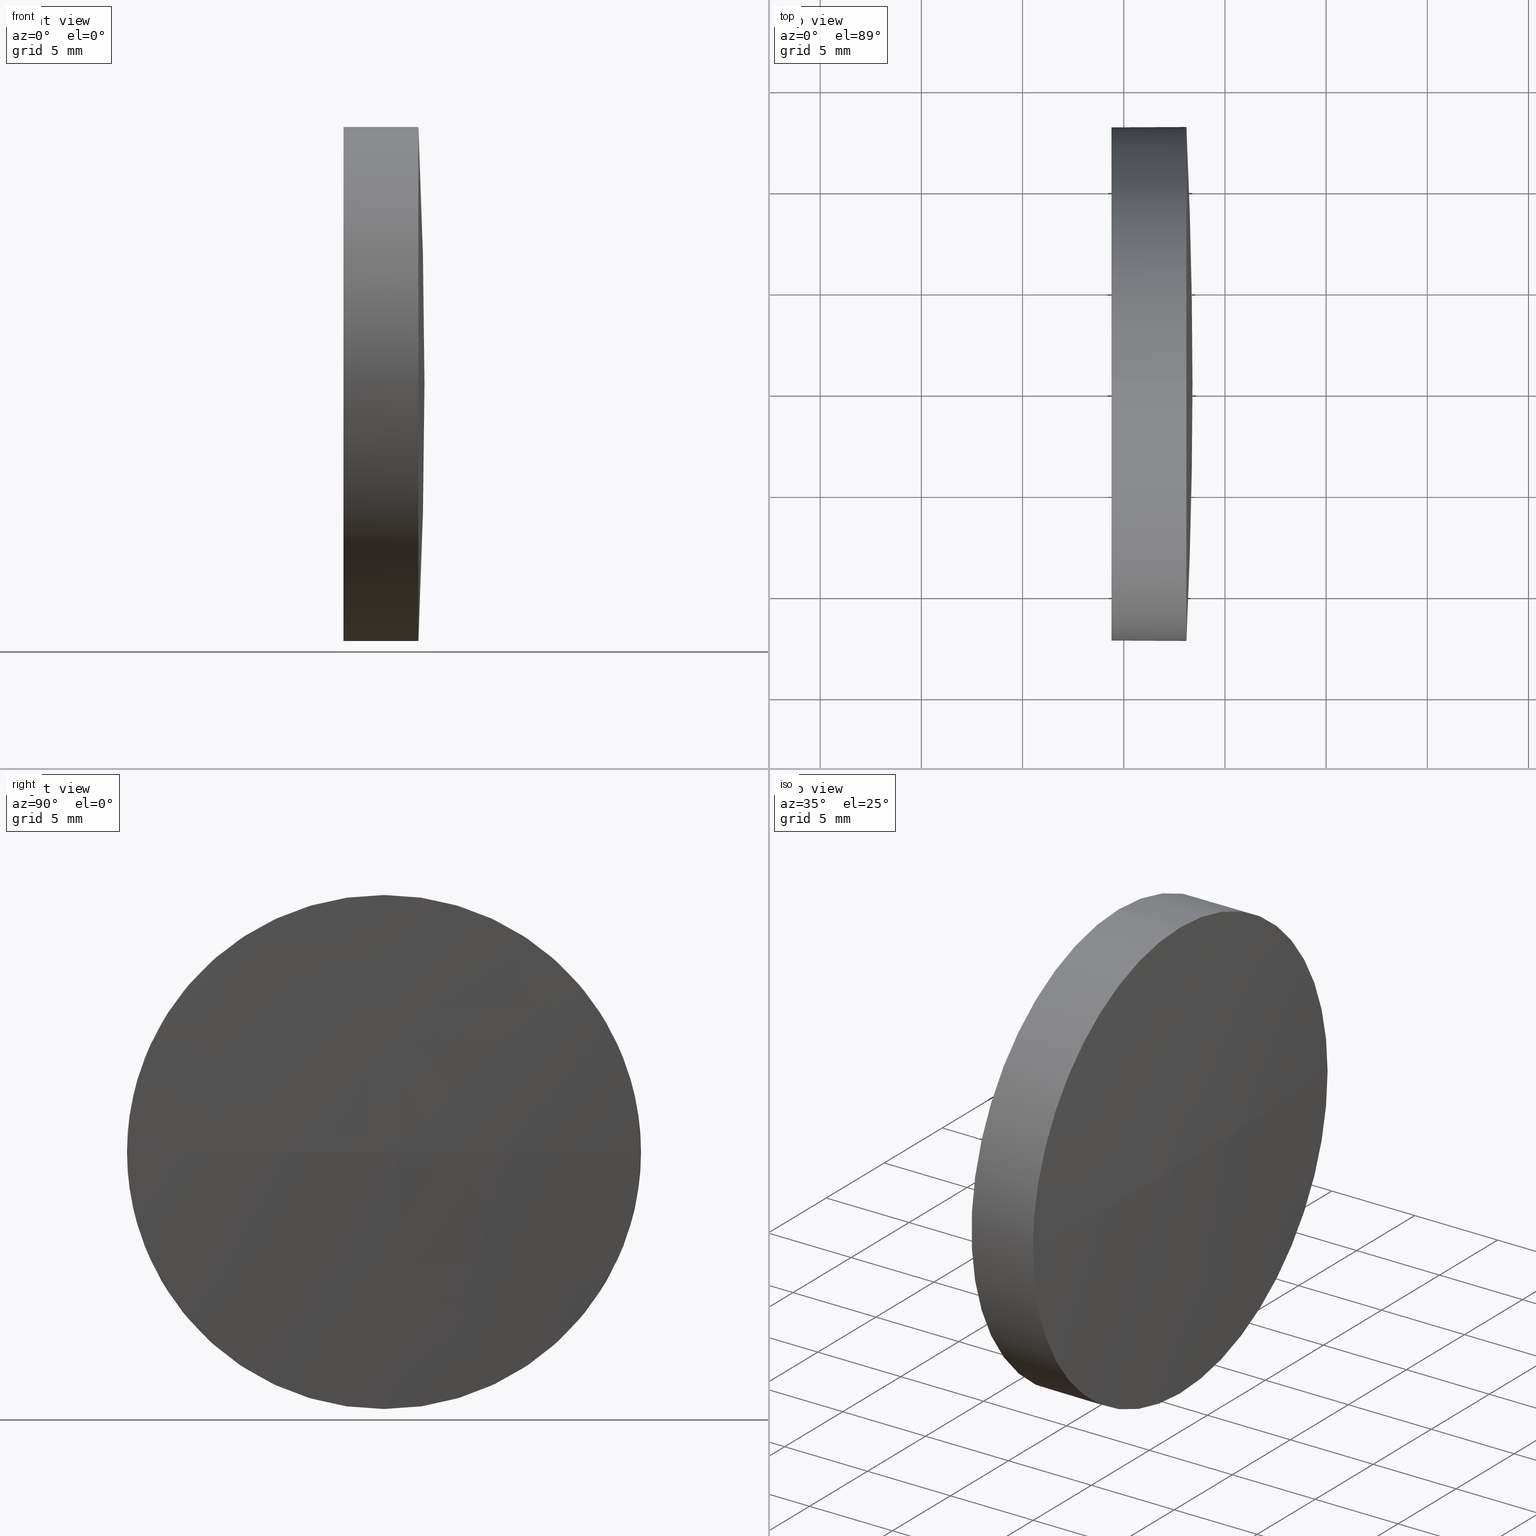
[diagram: canonical four-view strip — front | top / right | iso, engineering-drawing reading convention]
A machine part, canonical four-view strip (front | top / right | iso — engineering-drawing reading convention). The complete STEP part file that produces these views, byte-faithful:
ISO-10303-21;
HEADER;
FILE_DESCRIPTION (( 'STEP AP214' ),
    '1' );
FILE_NAME ('100494.STEP',
    '2019-06-12T05:53:42',
    ( '' ),
    ( '' ),
    'SwSTEP 2.0',
    'SolidWorks 2016',
    '' );
FILE_SCHEMA (( 'AUTOMOTIVE_DESIGN' ));
ENDSEC;

DATA;
#1 = DIRECTION ( 'NONE',  ( 0.0000000000000000000, 0.0000000000000000000, 1.000000000000000000 ) ) ;
#2 = AXIS2_PLACEMENT_3D ( 'NONE', #133, #161, #108 ) ;
#3 = CARTESIAN_POINT ( 'NONE',  ( 548.0956546235013300, 475.3741786464798900, 12.70000000000004500 ) ) ;
#4 = PRODUCT_DEFINITION_FORMATION_WITH_SPECIFIED_SOURCE ( '�κ�', '', #143, .NOT_KNOWN. ) ;
#5 = PRESENTATION_STYLE_ASSIGNMENT (( #185 ) ) ;
#6 = ORIENTED_EDGE ( 'NONE', *, *, #35, .T. ) ;
#7 = EDGE_CURVE ( 'NONE', #149, #169, #146, .T. ) ;
#8 = CARTESIAN_POINT ( 'NONE',  ( 548.0956546235013300, 475.3741786464798900, 0.0000000000000000000 ) ) ;
#9 = PRESENTATION_LAYER_ASSIGNMENT (  '', '', ( #47 ) ) ;
#10 = CARTESIAN_POINT ( 'NONE',  ( 548.0956546235013300, 475.3741786464798900, 0.0000000000000000000 ) ) ;
#11 = ORIENTED_EDGE ( 'NONE', *, *, #180, .T. ) ;
#12 = DIRECTION ( 'NONE',  ( 0.0000000000000000000, 0.0000000000000000000, 1.000000000000000000 ) ) ;
#13 = DIRECTION ( 'NONE',  ( 0.0000000000000000000, 0.0000000000000000000, 1.000000000000000000 ) ) ;
#14 = ORIENTED_EDGE ( 'NONE', *, *, #90, .F. ) ;
#15 =( GEOMETRIC_REPRESENTATION_CONTEXT ( 3 ) GLOBAL_UNCERTAINTY_ASSIGNED_CONTEXT ( ( #59 ) ) GLOBAL_UNIT_ASSIGNED_CONTEXT ( ( #150, #122, #135 ) ) REPRESENTATION_CONTEXT ( 'NONE', 'WORKASPACE' ) );
#16 = CARTESIAN_POINT ( 'NONE',  ( 548.0956546235013300, 475.3741786464798900, 0.0000000000000000000 ) ) ;
#17 = FACE_OUTER_BOUND ( 'NONE', #114, .T. ) ;
#18 = VERTEX_POINT ( 'NONE', #49 ) ;
#19 = FILL_AREA_STYLE_COLOUR ( '', #101 ) ;
#20 = DIRECTION ( 'NONE',  ( 0.0000000000000000000, 0.0000000000000000000, 1.000000000000000000 ) ) ;
#21 = ADVANCED_BREP_SHAPE_REPRESENTATION ( '100494', ( #155, #66 ), #87 ) ;
#22 = DIRECTION ( 'NONE',  ( 0.0000000000000000000, 1.000000000000000000, 0.0000000000000000000 ) ) ;
#23 = CYLINDRICAL_SURFACE ( 'NONE', #2, 12.70000000000004500 ) ;
#24 = APPLICATION_CONTEXT ( 'automotive_design' ) ;
#25 = DIRECTION ( 'NONE',  ( 1.000000000000000000, 0.0000000000000000000, 0.0000000000000000000 ) ) ;
#26 = PRODUCT_CONTEXT ( 'NONE', #46, 'mechanical' ) ;
#27 = SURFACE_STYLE_FILL_AREA ( #30 ) ;
#28 = EDGE_CURVE ( 'NONE', #45, #149, #103, .T. ) ;
#29 = ORIENTED_EDGE ( 'NONE', *, *, #35, .F. ) ;
#30 = FILL_AREA_STYLE ('',( #183 ) ) ;
#31 =( GEOMETRIC_REPRESENTATION_CONTEXT ( 3 ) GLOBAL_UNCERTAINTY_ASSIGNED_CONTEXT ( ( #39 ) ) GLOBAL_UNIT_ASSIGNED_CONTEXT ( ( #112, #139, #141 ) ) REPRESENTATION_CONTEXT ( 'NONE', 'WORKASPACE' ) );
#32 = CARTESIAN_POINT ( 'NONE',  ( 544.3956546235012900, 475.3741786464798900, 0.0000000000000000000 ) ) ;
#33 = CIRCLE ( 'NONE', #43, 12.70000000000004500 ) ;
#34 = VERTEX_POINT ( 'NONE', #3 ) ;
#35 = EDGE_CURVE ( 'NONE', #18, #115, #33, .T. ) ;
#36 = ORIENTED_EDGE ( 'NONE', *, *, #85, .F. ) ;
#37 = DIRECTION ( 'NONE',  ( 0.0000000000000000000, 0.0000000000000000000, 1.000000000000000000 ) ) ;
#38 = CARTESIAN_POINT ( 'NONE',  ( 279.4289879568316900, 475.3741786464798900, 0.0000000000000000000 ) ) ;
#39 = UNCERTAINTY_MEASURE_WITH_UNIT (LENGTH_MEASURE( 1.000000000000000100E-005 ), #112, 'distance_accuracy_value', 'NONE');
#40 = CARTESIAN_POINT ( 'NONE',  ( 538.7657585723441100, 475.3741786464798900, 12.70000000000004500 ) ) ;
#41 = DIRECTION ( 'NONE',  ( -1.000000000000000000, -0.0000000000000000000, -0.0000000000000000000 ) ) ;
#42 = ORIENTED_EDGE ( 'NONE', *, *, #7, .F. ) ;
#43 = AXIS2_PLACEMENT_3D ( 'NONE', #32, #128, #157 ) ;
#44 =( LENGTH_UNIT ( ) NAMED_UNIT ( * ) SI_UNIT ( .MILLI., .METRE. ) );
#45 = VERTEX_POINT ( 'NONE', #76 ) ;
#46 = APPLICATION_CONTEXT ( 'automotive_design' ) ;
#47 = STYLED_ITEM ( 'NONE', ( #5 ), #21 ) ;
#48 = COLOUR_RGB ( '',1.000000000000000000, 1.000000000000000000, 1.000000000000000000 ) ;
#49 = CARTESIAN_POINT ( 'NONE',  ( 544.3956546235012900, 475.3741786464798900, -12.70000000000004500 ) ) ;
#50 = EDGE_CURVE ( 'NONE', #34, #45, #172, .T. ) ;
#51 = SPHERICAL_SURFACE ( 'NONE', #81, 268.9666666666696000 ) ;
#52 = ORIENTED_EDGE ( 'NONE', *, *, #171, .T. ) ;
#53 = PRESENTATION_LAYER_ASSIGNMENT (  '', '', ( #99 ) ) ;
#54 = DIRECTION ( 'NONE',  ( -0.0000000000000000000, 0.0000000000000000000, 1.000000000000000000 ) ) ;
#55 = CARTESIAN_POINT ( 'NONE',  ( 548.3956546235012900, 475.3741786464798900, 0.0000000000000000000 ) ) ;
#56 = CARTESIAN_POINT ( 'NONE',  ( 548.0956546235013300, 462.6741786464803000, -1.555301434917094700E-015 ) ) ;
#57 = SURFACE_STYLE_FILL_AREA ( #137 ) ;
#58 = AXIS2_PLACEMENT_3D ( 'NONE', #10, #41, #123 ) ;
#59 = UNCERTAINTY_MEASURE_WITH_UNIT (LENGTH_MEASURE( 1.000000000000000100E-005 ), #150, 'distance_accuracy_value', 'NONE');
#60 = FACE_OUTER_BOUND ( 'NONE', #89, .T. ) ;
#61 = PRODUCT_RELATED_PRODUCT_CATEGORY ( 'part', '', ( #143 ) ) ;
#62 = FACE_OUTER_BOUND ( 'NONE', #131, .T. ) ;
#63 = PRODUCT_DEFINITION_CONTEXT ( 'detailed design', #24, 'design' ) ;
#64 = AXIS2_PLACEMENT_3D ( 'NONE', #16, #170, #1 ) ;
#65 = CARTESIAN_POINT ( 'NONE',  ( 544.3956546235012900, 475.3741786464798900, 0.0000000000000000000 ) ) ;
#66 = AXIS2_PLACEMENT_3D ( 'NONE', #96, #13, #25 ) ;
#67 = CARTESIAN_POINT ( 'NONE',  ( 544.3956546235012900, 475.3741786464798900, 0.0000000000000000000 ) ) ;
#68 = CARTESIAN_POINT ( 'NONE',  ( 538.7657585723441100, 475.3741786464798900, 0.0000000000000000000 ) ) ;
#69 = ORIENTED_EDGE ( 'NONE', *, *, #120, .T. ) ;
#70 = DIRECTION ( 'NONE',  ( 1.000000000000000000, 0.0000000000000000000, 0.0000000000000000000 ) ) ;
#71 = AXIS2_PLACEMENT_3D ( 'NONE', #38, #54, #70 ) ;
#72 =( NAMED_UNIT ( * ) SI_UNIT ( $, .STERADIAN. ) SOLID_ANGLE_UNIT ( ) );
#73 = EDGE_LOOP ( 'NONE', ( #36, #124, #182, #159 ) ) ;
#74 = CIRCLE ( 'NONE', #92, 12.70000000000004500 ) ;
#75 = DIRECTION ( 'NONE',  ( -1.000000000000000000, -0.0000000000000000000, -0.0000000000000000000 ) ) ;
#76 = CARTESIAN_POINT ( 'NONE',  ( 548.0956546235013300, 488.0741786464794800, 0.0000000000000000000 ) ) ;
#77 = ORIENTED_EDGE ( 'NONE', *, *, #180, .F. ) ;
#78 = AXIS2_PLACEMENT_3D ( 'NONE', #65, #153, #97 ) ;
#79 = PRODUCT_DEFINITION ( 'δ֪', '', #4, #63 ) ;
#80 = ORIENTED_EDGE ( 'NONE', *, *, #28, .T. ) ;
#81 = AXIS2_PLACEMENT_3D ( 'NONE', #163, #110, #22 ) ;
#82 = ORIENTED_EDGE ( 'NONE', *, *, #7, .T. ) ;
#83 = DIRECTION ( 'NONE',  ( 0.0000000000000000000, 1.000000000000000000, 1.224646799147353200E-016 ) ) ;
#84 = DIRECTION ( 'NONE',  ( -0.0000000000000000000, 0.0000000000000000000, -1.000000000000000000 ) ) ;
#85 = EDGE_CURVE ( 'NONE', #167, #169, #104, .T. ) ;
#86 =( NAMED_UNIT ( * ) PLANE_ANGLE_UNIT ( ) SI_UNIT ( $, .RADIAN. ) );
#87 =( GEOMETRIC_REPRESENTATION_CONTEXT ( 3 ) GLOBAL_UNCERTAINTY_ASSIGNED_CONTEXT ( ( #165 ) ) GLOBAL_UNIT_ASSIGNED_CONTEXT ( ( #44, #86, #72 ) ) REPRESENTATION_CONTEXT ( 'NONE', 'WORKASPACE' ) );
#88 = VECTOR ( 'NONE', #136, 1000.000000000000000 ) ;
#89 = EDGE_LOOP ( 'NONE', ( #14, #156, #42, #142 ) ) ;
#90 = EDGE_CURVE ( 'NONE', #167, #45, #147, .T. ) ;
#91 = SHAPE_DEFINITION_REPRESENTATION ( #145, #21 ) ;
#92 = AXIS2_PLACEMENT_3D ( 'NONE', #67, #179, #37 ) ;
#93 = DIRECTION ( 'NONE',  ( -1.000000000000000000, -0.0000000000000000000, -0.0000000000000000000 ) ) ;
#94 = ORIENTED_EDGE ( 'NONE', *, *, #106, .F. ) ;
#95 = DIRECTION ( 'NONE',  ( -1.000000000000000000, -0.0000000000000000000, -0.0000000000000000000 ) ) ;
#96 = CARTESIAN_POINT ( 'NONE',  ( 0.0000000000000000000, 0.0000000000000000000, 0.0000000000000000000 ) ) ;
#97 = DIRECTION ( 'NONE',  ( 0.0000000000000000000, 0.0000000000000000000, -1.000000000000000000 ) ) ;
#98 = EDGE_LOOP ( 'NONE', ( #107, #6 ) ) ;
#99 = STYLED_ITEM ( 'NONE', ( #162 ), #155 ) ;
#100 = MECHANICAL_DESIGN_GEOMETRIC_PRESENTATION_REPRESENTATION (  '', ( #47 ), #31 ) ;
#101 = COLOUR_RGB ( '',1.000000000000000000, 1.000000000000000000, 1.000000000000000000 ) ;
#102 = ORIENTED_EDGE ( 'NONE', *, *, #50, .T. ) ;
#103 = CIRCLE ( 'NONE', #144, 12.70000000000004500 ) ;
#104 = CIRCLE ( 'NONE', #129, 268.9666666666696000 ) ;
#105 = ADVANCED_FACE ( 'NONE', ( #176 ), #121, .F. ) ;
#106 = EDGE_CURVE ( 'NONE', #115, #18, #74, .T. ) ;
#107 = ORIENTED_EDGE ( 'NONE', *, *, #106, .T. ) ;
#108 = DIRECTION ( 'NONE',  ( 0.0000000000000000000, 0.0000000000000000000, 1.000000000000000000 ) ) ;
#109 = DIRECTION ( 'NONE',  ( 0.0000000000000000000, 1.224646799147353200E-016, -1.000000000000000000 ) ) ;
#110 = DIRECTION ( 'NONE',  ( -0.0000000000000000000, 0.0000000000000000000, -1.000000000000000000 ) ) ;
#111 = CARTESIAN_POINT ( 'NONE',  ( 538.7657585723441100, 475.3741786464798900, -12.70000000000004500 ) ) ;
#112 =( LENGTH_UNIT ( ) NAMED_UNIT ( * ) SI_UNIT ( .MILLI., .METRE. ) );
#113 = APPLICATION_PROTOCOL_DEFINITION ( 'draft international standard', 'automotive_design', 1998, #46 ) ;
#114 = EDGE_LOOP ( 'NONE', ( #77, #82, #69, #52, #29 ) ) ;
#115 = VERTEX_POINT ( 'NONE', #138 ) ;
#116 = CARTESIAN_POINT ( 'NONE',  ( 548.0956546235013300, 475.3741786464798900, 0.0000000000000000000 ) ) ;
#117 = AXIS2_PLACEMENT_3D ( 'NONE', #68, #95, #20 ) ;
#118 = FACE_OUTER_BOUND ( 'NONE', #73, .T. ) ;
#119 = ADVANCED_FACE ( 'NONE', ( #62 ), #23, .T. ) ;
#120 = EDGE_CURVE ( 'NONE', #169, #34, #134, .T. ) ;
#121 = PLANE ( 'NONE',  #78 ) ;
#122 =( NAMED_UNIT ( * ) PLANE_ANGLE_UNIT ( ) SI_UNIT ( $, .RADIAN. ) );
#123 = DIRECTION ( 'NONE',  ( 0.0000000000000000000, 0.0000000000000000000, 1.000000000000000000 ) ) ;
#124 = ORIENTED_EDGE ( 'NONE', *, *, #90, .T. ) ;
#125 = CARTESIAN_POINT ( 'NONE',  ( 548.0956546235013300, 475.3741786464798900, -12.70000000000004500 ) ) ;
#126 = APPLICATION_PROTOCOL_DEFINITION ( 'draft international standard', 'automotive_design', 1998, #24 ) ;
#127 = CYLINDRICAL_SURFACE ( 'NONE', #117, 12.70000000000004500 ) ;
#128 = DIRECTION ( 'NONE',  ( -1.000000000000000000, -0.0000000000000000000, -0.0000000000000000000 ) ) ;
#129 = AXIS2_PLACEMENT_3D ( 'NONE', #177, #109, #83 ) ;
#130 = SPHERICAL_SURFACE ( 'NONE', #160, 268.9666666666696000 ) ;
#131 = EDGE_LOOP ( 'NONE', ( #80, #11, #94, #186, #102 ) ) ;
#132 = CLOSED_SHELL ( 'NONE', ( #119, #174, #173, #158, #105 ) ) ;
#133 = CARTESIAN_POINT ( 'NONE',  ( 538.7657585723441100, 475.3741786464798900, 0.0000000000000000000 ) ) ;
#134 = CIRCLE ( 'NONE', #154, 12.70000000000004500 ) ;
#135 =( NAMED_UNIT ( * ) SI_UNIT ( $, .STERADIAN. ) SOLID_ANGLE_UNIT ( ) );
#136 = DIRECTION ( 'NONE',  ( -1.000000000000000000, -0.0000000000000000000, -0.0000000000000000000 ) ) ;
#137 = FILL_AREA_STYLE ('',( #19 ) ) ;
#138 = CARTESIAN_POINT ( 'NONE',  ( 544.3956546235012900, 475.3741786464798900, 12.70000000000004500 ) ) ;
#139 =( NAMED_UNIT ( * ) PLANE_ANGLE_UNIT ( ) SI_UNIT ( $, .RADIAN. ) );
#140 = VECTOR ( 'NONE', #184, 1000.000000000000000 ) ;
#141 =( NAMED_UNIT ( * ) SI_UNIT ( $, .STERADIAN. ) SOLID_ANGLE_UNIT ( ) );
#142 = ORIENTED_EDGE ( 'NONE', *, *, #28, .F. ) ;
#143 = PRODUCT ( '100494', '100494', '', ( #26 ) ) ;
#144 = AXIS2_PLACEMENT_3D ( 'NONE', #116, #75, #168 ) ;
#145 = PRODUCT_DEFINITION_SHAPE ( 'NONE', 'NONE',  #79 ) ;
#146 = CIRCLE ( 'NONE', #64, 12.70000000000004500 ) ;
#147 = CIRCLE ( 'NONE', #71, 268.9666666666696000 ) ;
#148 = MECHANICAL_DESIGN_GEOMETRIC_PRESENTATION_REPRESENTATION (  '', ( #99 ), #15 ) ;
#149 = VERTEX_POINT ( 'NONE', #125 ) ;
#150 =( LENGTH_UNIT ( ) NAMED_UNIT ( * ) SI_UNIT ( .MILLI., .METRE. ) );
#151 = LINE ( 'NONE', #111, #140 ) ;
#152 = CARTESIAN_POINT ( 'NONE',  ( 279.4289879568316900, 475.3741786464798900, 0.0000000000000000000 ) ) ;
#153 = DIRECTION ( 'NONE',  ( 1.000000000000000000, 0.0000000000000000000, 0.0000000000000000000 ) ) ;
#154 = AXIS2_PLACEMENT_3D ( 'NONE', #8, #93, #12 ) ;
#155 = MANIFOLD_SOLID_BREP ( '��ת1', #132 ) ;
#156 = ORIENTED_EDGE ( 'NONE', *, *, #85, .T. ) ;
#157 = DIRECTION ( 'NONE',  ( 0.0000000000000000000, 0.0000000000000000000, 1.000000000000000000 ) ) ;
#158 = ADVANCED_FACE ( 'NONE', ( #17 ), #127, .T. ) ;
#159 = ORIENTED_EDGE ( 'NONE', *, *, #120, .F. ) ;
#160 = AXIS2_PLACEMENT_3D ( 'NONE', #152, #84, #181 ) ;
#161 = DIRECTION ( 'NONE',  ( -1.000000000000000000, -0.0000000000000000000, -0.0000000000000000000 ) ) ;
#162 = PRESENTATION_STYLE_ASSIGNMENT (( #164 ) ) ;
#163 = CARTESIAN_POINT ( 'NONE',  ( 279.4289879568316900, 475.3741786464798900, 0.0000000000000000000 ) ) ;
#164 = SURFACE_STYLE_USAGE ( .BOTH. , #178 ) ;
#165 = UNCERTAINTY_MEASURE_WITH_UNIT (LENGTH_MEASURE( 1.000000000000000100E-005 ), #44, 'distance_accuracy_value', 'NONE');
#166 = SURFACE_SIDE_STYLE ('',( #27 ) ) ;
#167 = VERTEX_POINT ( 'NONE', #55 ) ;
#168 = DIRECTION ( 'NONE',  ( 0.0000000000000000000, 0.0000000000000000000, 1.000000000000000000 ) ) ;
#169 = VERTEX_POINT ( 'NONE', #56 ) ;
#170 = DIRECTION ( 'NONE',  ( -1.000000000000000000, -0.0000000000000000000, -0.0000000000000000000 ) ) ;
#171 = EDGE_CURVE ( 'NONE', #34, #115, #175, .T. ) ;
#172 = CIRCLE ( 'NONE', #58, 12.70000000000004500 ) ;
#173 = ADVANCED_FACE ( 'NONE', ( #118 ), #51, .T. ) ;
#174 = ADVANCED_FACE ( 'NONE', ( #60 ), #130, .T. ) ;
#175 = LINE ( 'NONE', #40, #88 ) ;
#176 = FACE_OUTER_BOUND ( 'NONE', #98, .T. ) ;
#177 = CARTESIAN_POINT ( 'NONE',  ( 279.4289879568316900, 475.3741786464798900, 0.0000000000000000000 ) ) ;
#178 = SURFACE_SIDE_STYLE ('',( #57 ) ) ;
#179 = DIRECTION ( 'NONE',  ( -1.000000000000000000, -0.0000000000000000000, -0.0000000000000000000 ) ) ;
#180 = EDGE_CURVE ( 'NONE', #149, #18, #151, .T. ) ;
#181 = DIRECTION ( 'NONE',  ( 0.0000000000000000000, 1.000000000000000000, 0.0000000000000000000 ) ) ;
#182 = ORIENTED_EDGE ( 'NONE', *, *, #50, .F. ) ;
#183 = FILL_AREA_STYLE_COLOUR ( '', #48 ) ;
#184 = DIRECTION ( 'NONE',  ( -1.000000000000000000, -0.0000000000000000000, -0.0000000000000000000 ) ) ;
#185 = SURFACE_STYLE_USAGE ( .BOTH. , #166 ) ;
#186 = ORIENTED_EDGE ( 'NONE', *, *, #171, .F. ) ;
ENDSEC;
END-ISO-10303-21;
